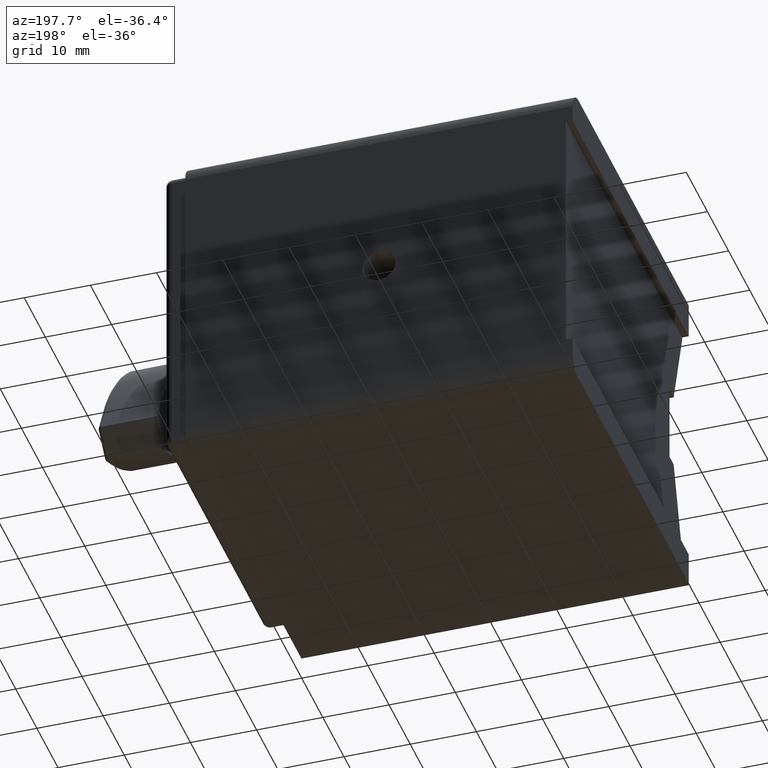
[diagram: clean part render]
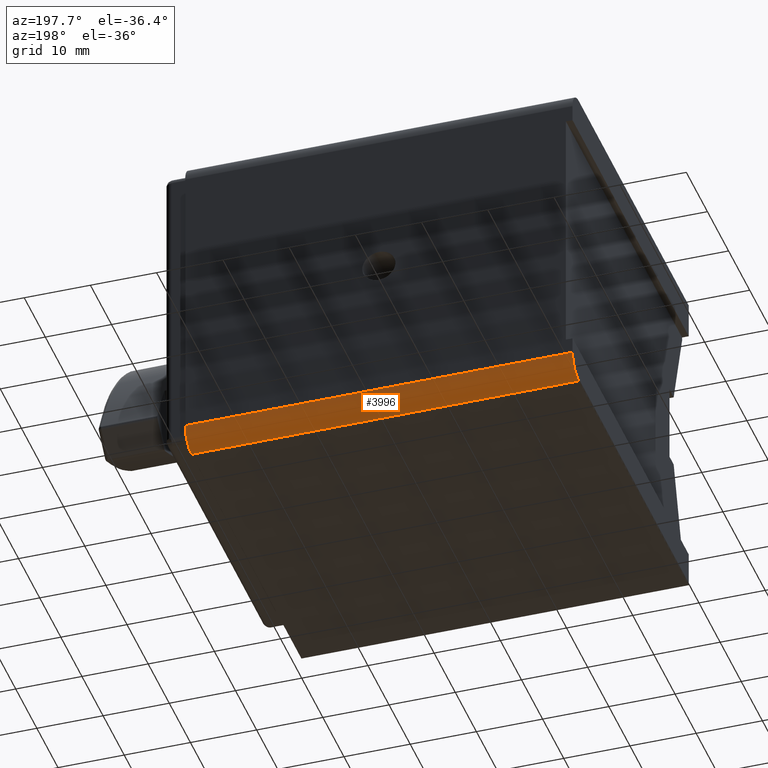
[diagram: same view with one face highlighted and labeled with its STEP entity id]
A machine part, auxiliary view. The second image highlights one B-rep face of the part: STEP entity #3996.
In plain terms, the highlighted cylindrical surface (edge-blend (fillet) strip) has radius 3 mm, axis along (1, 0, 0).
Its self-contained STEP definition (entity closure, byte-faithful):
#77 = CARTESIAN_POINT ( 'NONE',  ( 29.25000000000000000, 24.50000000000000000, -25.00000000000000355 ) ) ;
#252 = CARTESIAN_POINT ( 'NONE',  ( -29.25000000000000000, 24.50000000000000000, -25.00000000000000355 ) ) ;
#363 = DIRECTION ( 'NONE',  ( 0.000000000000000000, 0.000000000000000000, -1.000000000000000000 ) ) ;
#479 = DIRECTION ( 'NONE',  ( 0.000000000000000000, 0.000000000000000000, -1.000000000000000000 ) ) ;
#524 = EDGE_LOOP ( 'NONE', ( #1435, #4733, #4709, #1356 ) ) ;
#694 = CARTESIAN_POINT ( 'NONE',  ( -29.25000000000000000, 24.50000000000000000, -25.00000000000000355 ) ) ;
#762 = EDGE_CURVE ( 'NONE', #1604, #1659, #1877, .T. ) ;
#1235 = DIRECTION ( 'NONE',  ( 0.000000000000000000, 0.000000000000000000, -1.000000000000000000 ) ) ;
#1356 = ORIENTED_EDGE ( 'NONE', *, *, #4020, .T. ) ;
#1435 = ORIENTED_EDGE ( 'NONE', *, *, #4110, .T. ) ;
#1441 = CARTESIAN_POINT ( 'NONE',  ( -29.25000000000000000, 27.50000000000000000, -22.00000000000001066 ) ) ;
#1488 = AXIS2_PLACEMENT_3D ( 'NONE', #4642, #3437, #363 ) ;
#1604 = VERTEX_POINT ( 'NONE', #1441 ) ;
#1638 = DIRECTION ( 'NONE',  ( -1.000000000000000000, -0.000000000000000000, -0.000000000000000000 ) ) ;
#1659 = VERTEX_POINT ( 'NONE', #3419 ) ;
#1788 = DIRECTION ( 'NONE',  ( 1.000000000000000000, 0.000000000000000000, 0.000000000000000000 ) ) ;
#1850 = CARTESIAN_POINT ( 'NONE',  ( 0.000000000000000000, 27.50000000000000000, -22.00000000000001066 ) ) ;
#1877 = LINE ( 'NONE', #1850, #4654 ) ;
#1878 = VERTEX_POINT ( 'NONE', #77 ) ;
#2191 = CYLINDRICAL_SURFACE ( 'NONE', #1488, 2.999999999999999112 ) ;
#2253 = DIRECTION ( 'NONE',  ( -1.000000000000000000, -0.000000000000000000, 0.000000000000000000 ) ) ;
#2277 = LINE ( 'NONE', #694, #4089 ) ;
#2288 = AXIS2_PLACEMENT_3D ( 'NONE', #4667, #3991, #479 ) ;
#2724 = AXIS2_PLACEMENT_3D ( 'NONE', #3523, #1638, #1235 ) ;
#3088 = FACE_OUTER_BOUND ( 'NONE', #524, .T. ) ;
#3138 = CIRCLE ( 'NONE', #2724, 2.999999999999999112 ) ;
#3419 = CARTESIAN_POINT ( 'NONE',  ( 29.25000000000000000, 27.50000000000000000, -22.00000000000001066 ) ) ;
#3437 = DIRECTION ( 'NONE',  ( 1.000000000000000000, 0.000000000000000000, 0.000000000000000000 ) ) ;
#3523 = CARTESIAN_POINT ( 'NONE',  ( 29.25000000000000000, 24.50000000000000000, -22.00000000000001066 ) ) ;
#3605 = CIRCLE ( 'NONE', #2288, 2.999999999999999112 ) ;
#3741 = VERTEX_POINT ( 'NONE', #252 ) ;
#3838 = EDGE_CURVE ( 'NONE', #1659, #1878, #3138, .T. ) ;
#3991 = DIRECTION ( 'NONE',  ( 1.000000000000000000, 0.000000000000000000, 0.000000000000000000 ) ) ;
#3996 = ADVANCED_FACE ( 'NONE', ( #3088 ), #2191, .T. ) ;
#4020 = EDGE_CURVE ( 'NONE', #1878, #3741, #2277, .T. ) ;
#4089 = VECTOR ( 'NONE', #2253, 1000.000000000000000 ) ;
#4110 = EDGE_CURVE ( 'NONE', #3741, #1604, #3605, .T. ) ;
#4642 = CARTESIAN_POINT ( 'NONE',  ( 0.000000000000000000, 24.50000000000000000, -22.00000000000001066 ) ) ;
#4654 = VECTOR ( 'NONE', #1788, 1000.000000000000000 ) ;
#4667 = CARTESIAN_POINT ( 'NONE',  ( -29.25000000000000000, 24.50000000000000000, -22.00000000000001066 ) ) ;
#4709 = ORIENTED_EDGE ( 'NONE', *, *, #3838, .T. ) ;
#4733 = ORIENTED_EDGE ( 'NONE', *, *, #762, .T. ) ;